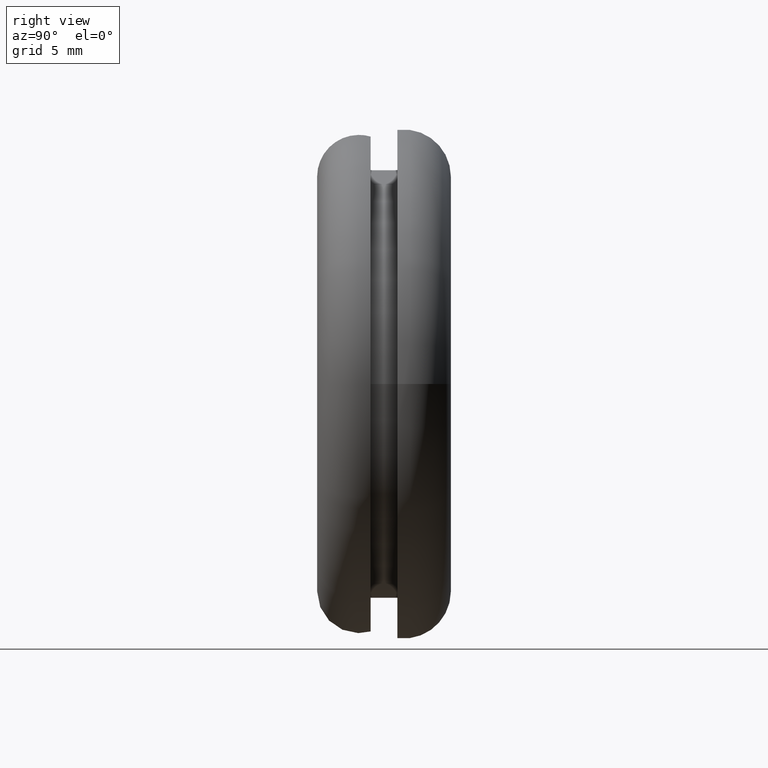
[diagram: clean part render]
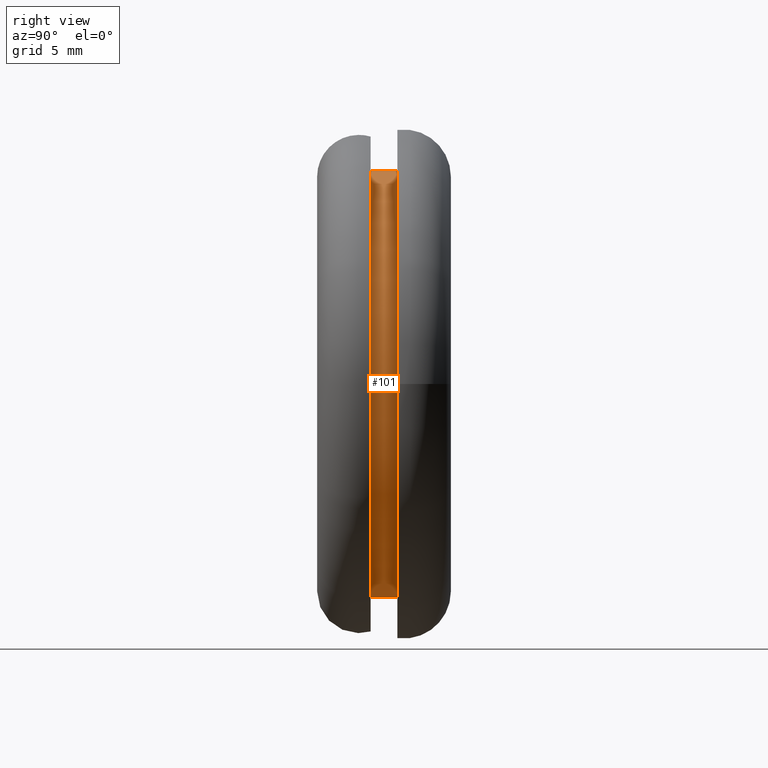
[diagram: same view with one face highlighted and labeled with its STEP entity id]
A machine part, right view. The second image highlights one B-rep face of the part: STEP entity #101.
In plain terms, the highlighted cylindrical surface (bore or boss wall) has radius 16 mm, axis along (0, -1, 0).
Its self-contained STEP definition (entity closure, byte-faithful):
#26=FACE_BOUND('',#48,.T.);
#34=FACE_OUTER_BOUND('',#47,.T.);
#47=EDGE_LOOP('',(#87));
#48=EDGE_LOOP('',(#88));
#57=CIRCLE('',#113,16.);
#59=CIRCLE('',#118,16.);
#65=VERTEX_POINT('',#170);
#67=VERTEX_POINT('',#177);
#73=EDGE_CURVE('',#65,#65,#57,.T.);
#75=EDGE_CURVE('',#67,#67,#59,.T.);
#87=ORIENTED_EDGE('',*,*,#73,.F.);
#88=ORIENTED_EDGE('',*,*,#75,.F.);
#95=CYLINDRICAL_SURFACE('',#117,16.);
#101=ADVANCED_FACE('',(#34,#26),#95,.T.);
#113=AXIS2_PLACEMENT_3D('',#171,#138,#139);
#117=AXIS2_PLACEMENT_3D('',#176,#146,#147);
#118=AXIS2_PLACEMENT_3D('',#178,#148,#149);
#138=DIRECTION('center_axis',(1.83697019872103E-16,-1.,0.));
#139=DIRECTION('ref_axis',(-1.,-1.83697019872103E-16,0.));
#146=DIRECTION('center_axis',(0.,-1.,0.));
#147=DIRECTION('ref_axis',(-1.,0.,0.));
#148=DIRECTION('center_axis',(-1.83697019872103E-16,1.,0.));
#149=DIRECTION('ref_axis',(-1.,0.,0.));
#170=CARTESIAN_POINT('',(16.,-2.,1.95943487863577E-15));
#171=CARTESIAN_POINT('Origin',(0.,-2.,0.));
#176=CARTESIAN_POINT('Origin',(0.,0.,0.));
#177=CARTESIAN_POINT('',(16.,2.93915231795365E-15,1.95943487863577E-15));
#178=CARTESIAN_POINT('Origin',(0.,0.,0.));